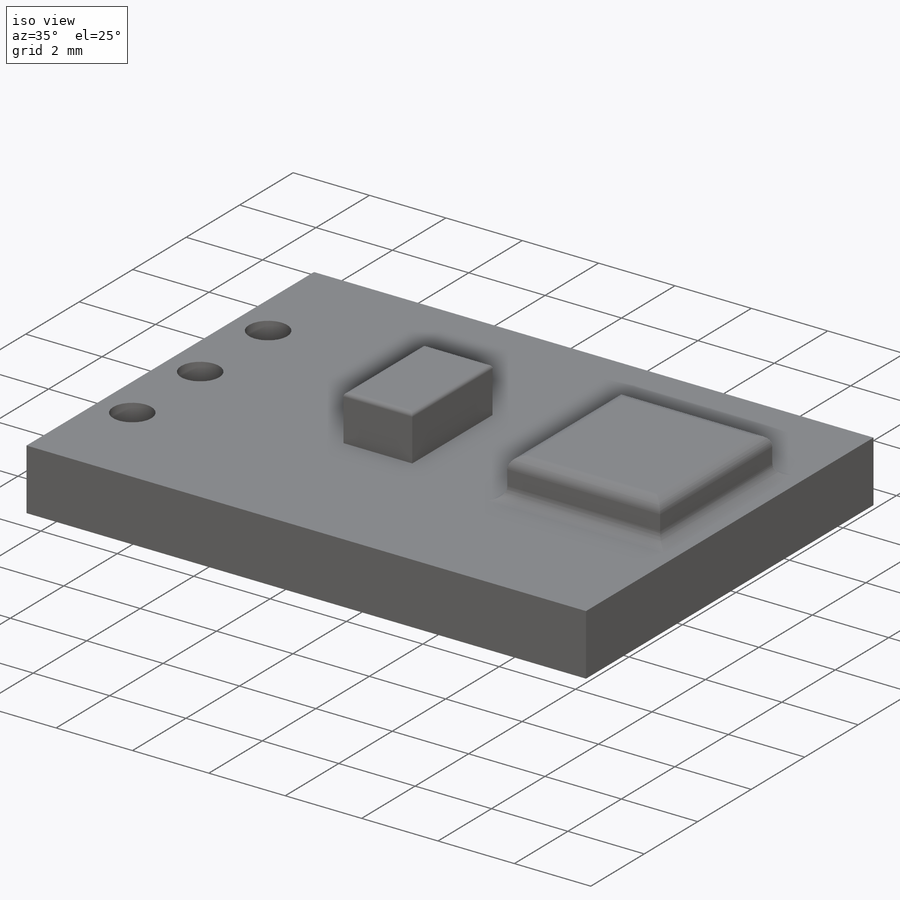
[diagram: iso view]
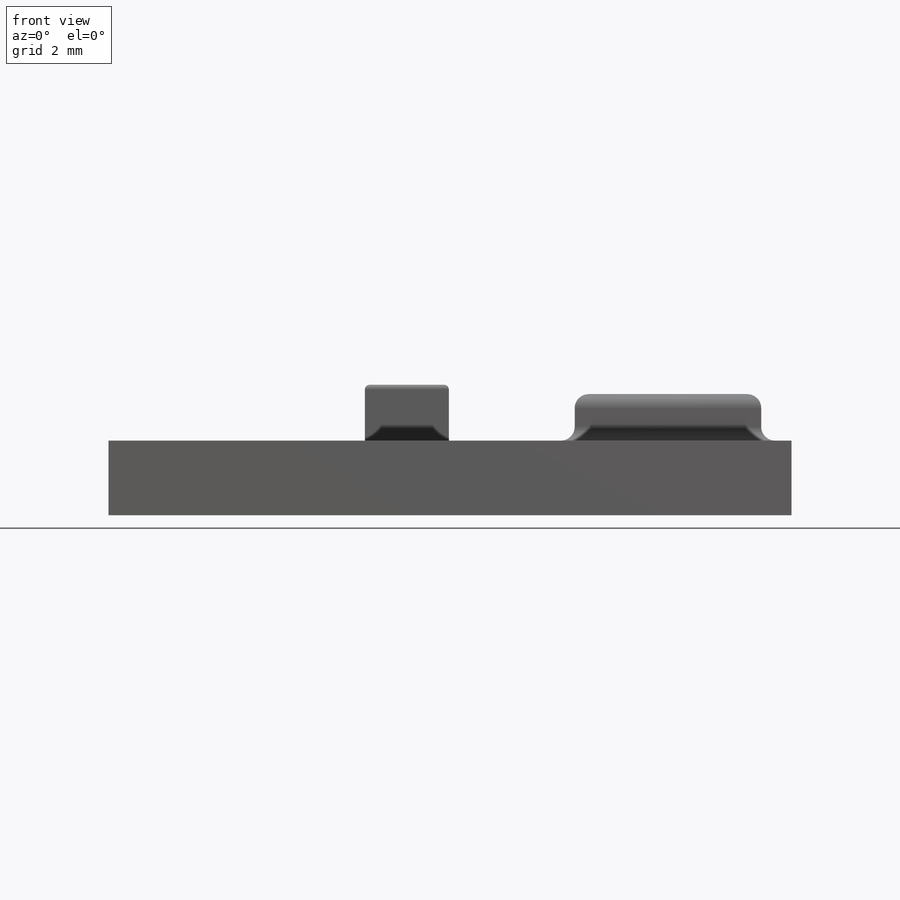
[diagram: front view]
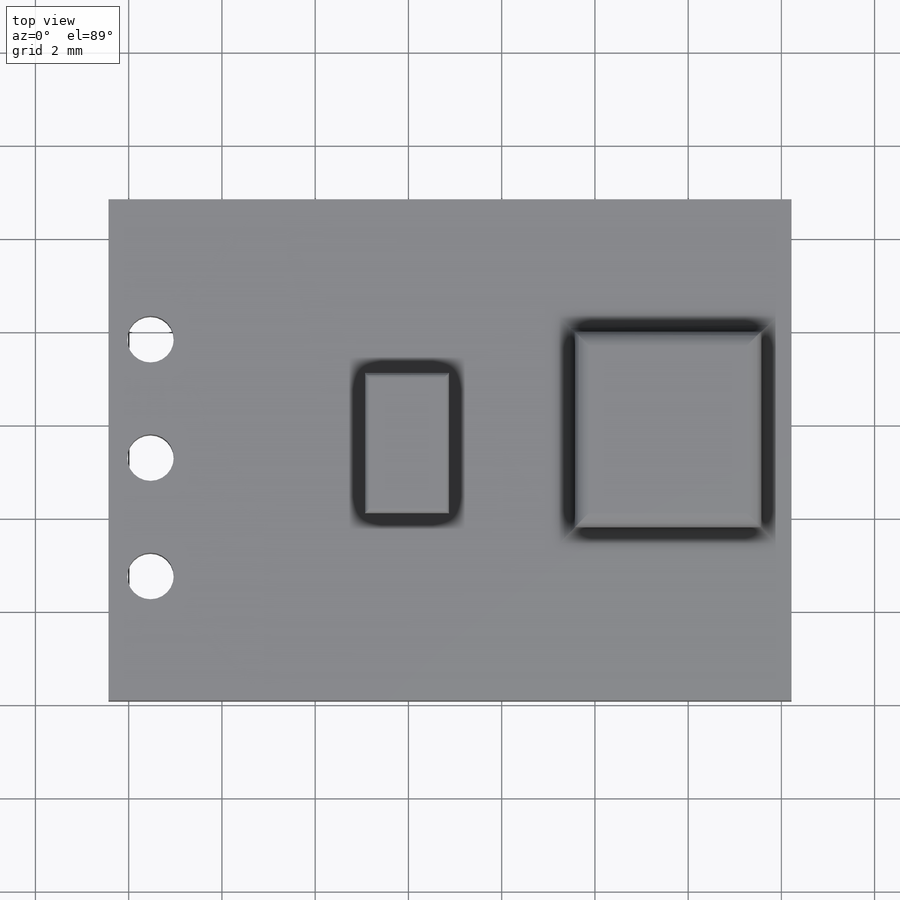
[diagram: top view]
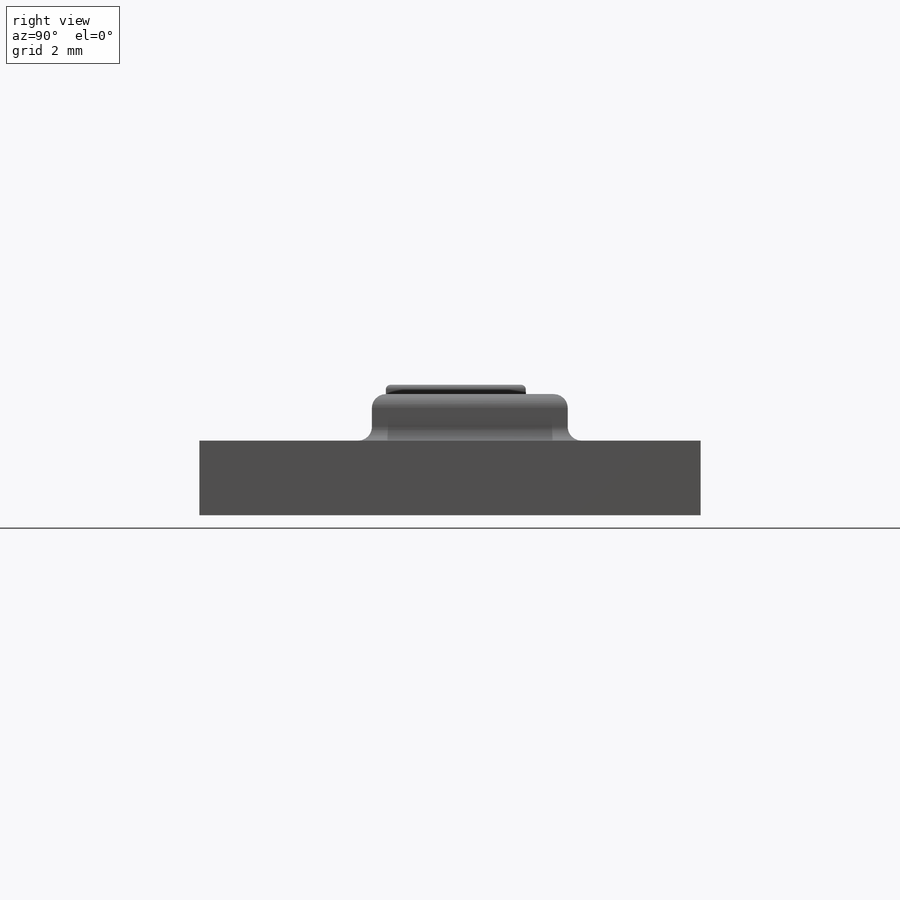
[diagram: right view]
SOLIDWORKS PART (.sldprt)
format: sldprt  version: not decoded by parser v0  size: 242,688 bytes
history: native  units: mm
features: sketch x4, extrude x3, fillet x2, material x1, cut_extrude x1 (+13 scaffold rows collapsed)
feature tree (24):
  scaffold x13  (default folders/planes/origin — collapsed)
  material  "Material <not specified>"
  sketch  "Sketch1"  dims[D1=14.75mm D2=10.85mm]
  extrude  "Mic Board"  Depth=1.6mm
  sketch  "Sketch2"  dims[c1.D1=~0.125958mm c1.D4=1.0mm c1.D5=1.0mm c2.D1=0.9mm c2.D2=3.0mm c2.D3=0.9mm c3.D1=3.0]
  cut_extrude  "Pins"  [1 undecoded]
  sketch  "mic Sketch"  dims[D1=2.85mm D2=4.0mm D3=4.2mm D4=0.65mm]
  extrude  "Microphone"  Depth=1mm
  sketch  "Op Amp Sketch"  dims[D1=3.0mm D2=1.8mm D3=4.0mm D4=5.5mm]
  extrude  "Op Amp"  Depth=1.2mm
  fillet  "Mic Fillet"  Radius=0.3mm
  fillet  "Op Amp Fillet"  Radius=0.1mm
decode coverage: 9 of 10 modeling features carry decoded parameters
note: ~ marks probable driven/reference dimensions
note: 1 parameter value undecoded
note: suppression state not decoded; provenance and decode notes live in map.json
